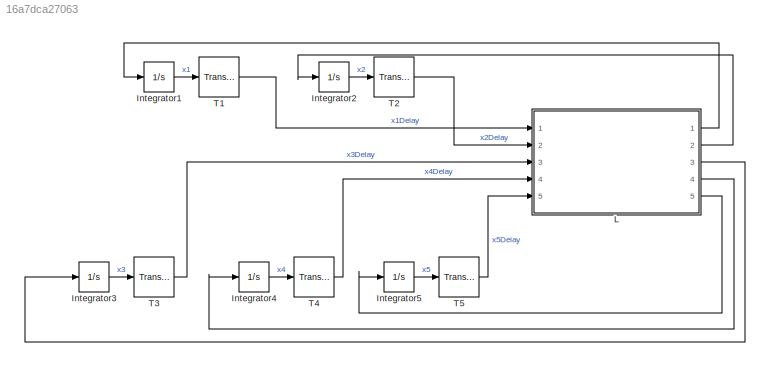
MODEL slx_16a7dca27063
KIND model
CONFIG AbsTol = auto
CONFIG EnableMultiTasking = off
CONFIG FixedStep = 0.1
CONFIG MaxStep = auto
CONFIG MinStep = auto
CONFIG RelTol = 1e-3
CONFIG SampleTimeConstraint = Unconstrained
CONFIG Solver = FixedStepAuto
CONFIG SolverName = FixedStepAuto
CONFIG StartTime = 0.0
CONFIG StopTime = 200
BLOCK [Integrator] Integrator1
  InitialCondition = 8.9
  Ports = [1, 1]
BLOCK [Integrator] Integrator2
  InitialCondition = 3.5
  Ports = [1, 1]
BLOCK [Integrator] Integrator3
  InitialCondition = 5.5
  Ports = [1, 1]
BLOCK [Integrator] Integrator4
  InitialCondition = 4.5
  Ports = [1, 1]
BLOCK [Integrator] Integrator5
  InitialCondition = 2.7
  Ports = [1, 1]
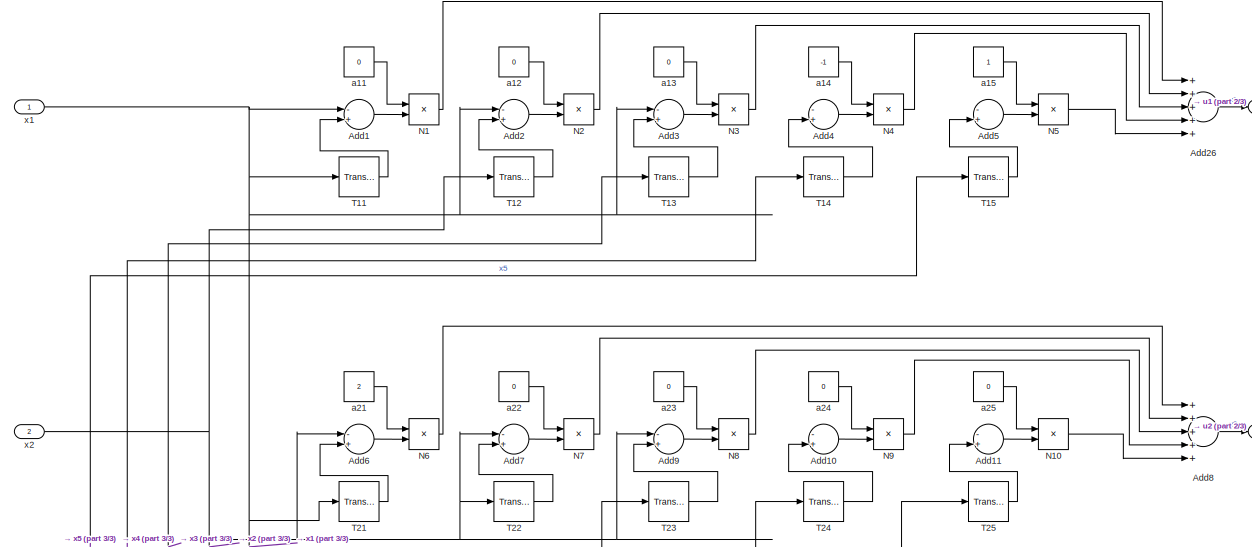
[diagram: L - part 1/3, full width, top band]
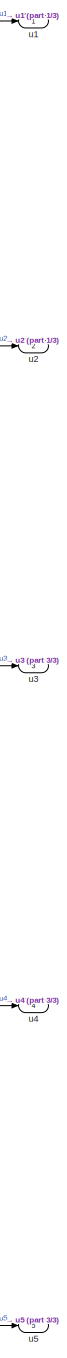
[diagram: L - part 2/3, right side, full height]
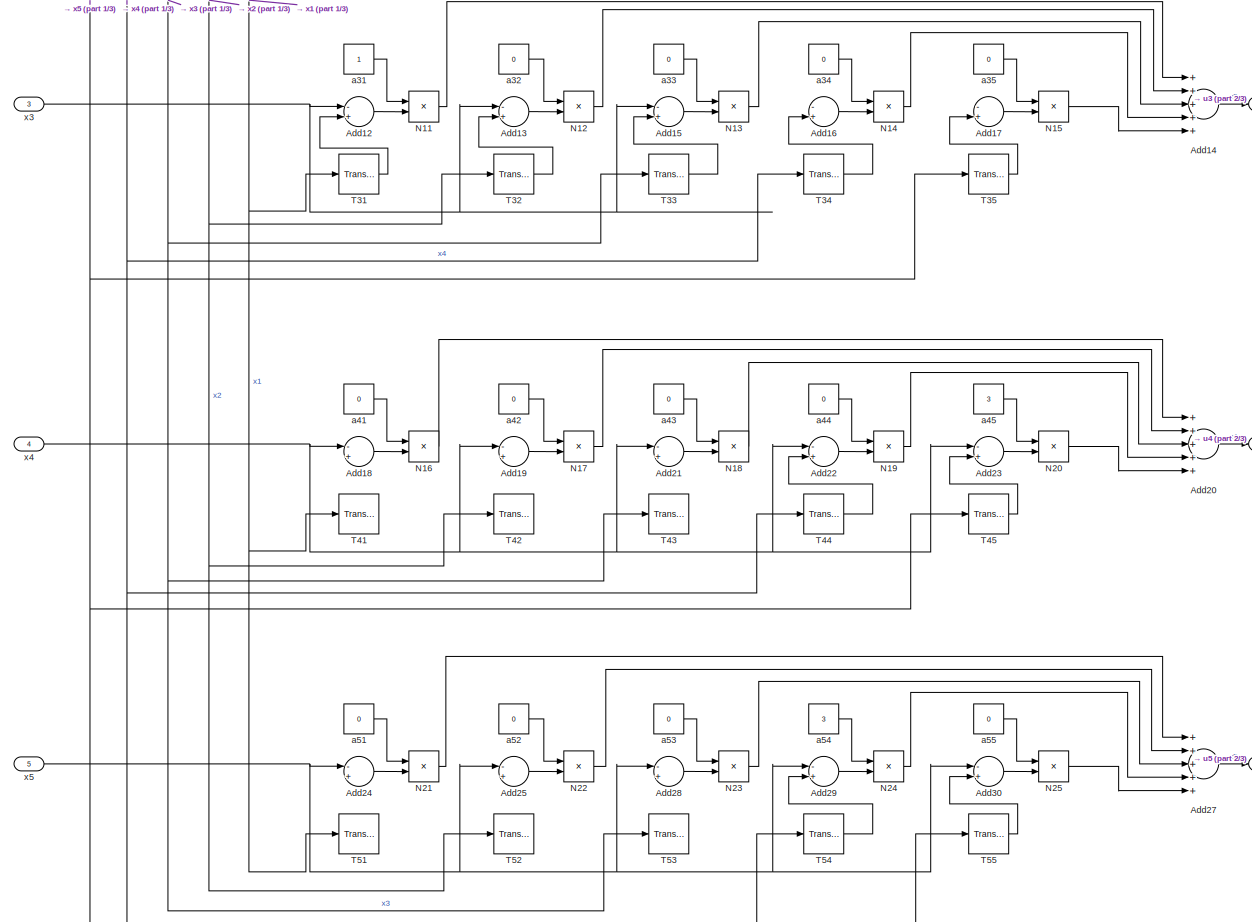
[diagram: L - part 3/3, full width, bottom band]
BLOCK [SubSystem] L
  Ports = [5, 5]
  RequestExecContextInheritance = off
BLOCK [Sum] L/Add1
  InputSameDT = off
  Inputs = -+
  OutDataTypeStr = Inherit: Inherit via internal rule
  Ports = [2, 1]
  SaturateOnIntegerOverflow = off
BLOCK [Sum] L/Add10
  InputSameDT = off
  Inputs = -+
  OutDataTypeStr = Inherit: Inherit via internal rule
  Ports = [2, 1]
  SaturateOnIntegerOverflow = off
BLOCK [Sum] L/Add11
  InputSameDT = off
  Inputs = -+
  OutDataTypeStr = Inherit: Inherit via internal rule
  Ports = [2, 1]
  SaturateOnIntegerOverflow = off
BLOCK [Sum] L/Add12
  InputSameDT = off
  Inputs = -+
  OutDataTypeStr = Inherit: Inherit via internal rule
  Ports = [2, 1]
  SaturateOnIntegerOverflow = off
BLOCK [Sum] L/Add13
  InputSameDT = off
  Inputs = -+
  OutDataTypeStr = Inherit: Inherit via internal rule
  Ports = [2, 1]
  SaturateOnIntegerOverflow = off
BLOCK [Sum] L/Add14
  InputSameDT = off
  Inputs = +++++
  OutDataTypeStr = Inherit: Inherit via internal rule
  Ports = [5, 1]
  SaturateOnIntegerOverflow = off
BLOCK [Sum] L/Add15
  InputSameDT = off
  Inputs = -+
  OutDataTypeStr = Inherit: Inherit via internal rule
  Ports = [2, 1]
  SaturateOnIntegerOverflow = off
BLOCK [Sum] L/Add16
  InputSameDT = off
  Inputs = -+
  OutDataTypeStr = Inherit: Inherit via internal rule
  Ports = [2, 1]
  SaturateOnIntegerOverflow = off
BLOCK [Sum] L/Add17
  InputSameDT = off
  Inputs = -+
  OutDataTypeStr = Inherit: Inherit via internal rule
  Ports = [2, 1]
  SaturateOnIntegerOverflow = off
BLOCK [Sum] L/Add18
  InputSameDT = off
  Inputs = -+
  OutDataTypeStr = Inherit: Inherit via internal rule
  Ports = [2, 1]
  SaturateOnIntegerOverflow = off
BLOCK [Sum] L/Add19
  InputSameDT = off
  Inputs = -+
  OutDataTypeStr = Inherit: Inherit via internal rule
  Ports = [2, 1]
  SaturateOnIntegerOverflow = off
BLOCK [Sum] L/Add2
  InputSameDT = off
  Inputs = -+
  OutDataTypeStr = Inherit: Inherit via internal rule
  Ports = [2, 1]
  SaturateOnIntegerOverflow = off
BLOCK [Sum] L/Add20
  InputSameDT = off
  Inputs = +++++
  OutDataTypeStr = Inherit: Inherit via internal rule
  Ports = [5, 1]
  SaturateOnIntegerOverflow = off
BLOCK [Sum] L/Add21
  InputSameDT = off
  Inputs = -+
  OutDataTypeStr = Inherit: Inherit via internal rule
  Ports = [2, 1]
  SaturateOnIntegerOverflow = off
BLOCK [Sum] L/Add22
  InputSameDT = off
  Inputs = -+
  OutDataTypeStr = Inherit: Inherit via internal rule
  Ports = [2, 1]
  SaturateOnIntegerOverflow = off
BLOCK [Sum] L/Add23
  InputSameDT = off
  Inputs = -+
  OutDataTypeStr = Inherit: Inherit via internal rule
  Ports = [2, 1]
  SaturateOnIntegerOverflow = off
BLOCK [Sum] L/Add24
  InputSameDT = off
  Inputs = -+
  OutDataTypeStr = Inherit: Inherit via internal rule
  Ports = [2, 1]
  SaturateOnIntegerOverflow = off
BLOCK [Sum] L/Add25
  InputSameDT = off
  Inputs = -+
  OutDataTypeStr = Inherit: Inherit via internal rule
  Ports = [2, 1]
  SaturateOnIntegerOverflow = off
BLOCK [Sum] L/Add26
  InputSameDT = off
  Inputs = +++++
  OutDataTypeStr = Inherit: Inherit via internal rule
  Ports = [5, 1]
  SaturateOnIntegerOverflow = off
BLOCK [Sum] L/Add27
  InputSameDT = off
  Inputs = +++++
  OutDataTypeStr = Inherit: Inherit via internal rule
  Ports = [5, 1]
  SaturateOnIntegerOverflow = off
BLOCK [Sum] L/Add28
  InputSameDT = off
  Inputs = -+
  OutDataTypeStr = Inherit: Inherit via internal rule
  Ports = [2, 1]
  SaturateOnIntegerOverflow = off
BLOCK [Sum] L/Add29
  InputSameDT = off
  Inputs = -+
  OutDataTypeStr = Inherit: Inherit via internal rule
  Ports = [2, 1]
  SaturateOnIntegerOverflow = off
BLOCK [Sum] L/Add3
  InputSameDT = off
  Inputs = -+
  OutDataTypeStr = Inherit: Inherit via internal rule
  Ports = [2, 1]
  SaturateOnIntegerOverflow = off
BLOCK [Sum] L/Add30
  InputSameDT = off
  Inputs = -+
  OutDataTypeStr = Inherit: Inherit via internal rule
  Ports = [2, 1]
  SaturateOnIntegerOverflow = off
BLOCK [Sum] L/Add4
  InputSameDT = off
  Inputs = -+
  OutDataTypeStr = Inherit: Inherit via internal rule
  Ports = [2, 1]
  SaturateOnIntegerOverflow = off
BLOCK [Sum] L/Add5
  InputSameDT = off
  Inputs = -+
  OutDataTypeStr = Inherit: Inherit via internal rule
  Ports = [2, 1]
  SaturateOnIntegerOverflow = off
BLOCK [Sum] L/Add6
  InputSameDT = off
  Inputs = -+
  OutDataTypeStr = Inherit: Inherit via internal rule
  Ports = [2, 1]
  SaturateOnIntegerOverflow = off
BLOCK [Sum] L/Add7
  InputSameDT = off
  Inputs = -+
  OutDataTypeStr = Inherit: Inherit via internal rule
  Ports = [2, 1]
  SaturateOnIntegerOverflow = off
BLOCK [Sum] L/Add8
  InputSameDT = off
  Inputs = +++++
  OutDataTypeStr = Inherit: Inherit via internal rule
  Ports = [5, 1]
  SaturateOnIntegerOverflow = off
BLOCK [Sum] L/Add9
  InputSameDT = off
  Inputs = -+
  OutDataTypeStr = Inherit: Inherit via internal rule
  Ports = [2, 1]
  SaturateOnIntegerOverflow = off
BLOCK [Product] L/N1
  InputSameDT = off
  OutDataTypeStr = Inherit: Inherit via internal rule
  Ports = [2, 1]
  RndMeth = Floor
  SaturateOnIntegerOverflow = off
BLOCK [Product] L/N10
  InputSameDT = off
  OutDataTypeStr = Inherit: Inherit via internal rule
  Ports = [2, 1]
  RndMeth = Floor
  SaturateOnIntegerOverflow = off
BLOCK [Product] L/N11
  InputSameDT = off
  OutDataTypeStr = Inherit: Inherit via internal rule
  Ports = [2, 1]
  RndMeth = Floor
  SaturateOnIntegerOverflow = off
BLOCK [Product] L/N12
  InputSameDT = off
  OutDataTypeStr = Inherit: Inherit via internal rule
  Ports = [2, 1]
  RndMeth = Floor
  SaturateOnIntegerOverflow = off
BLOCK [Product] L/N13
  InputSameDT = off
  OutDataTypeStr = Inherit: Inherit via internal rule
  Ports = [2, 1]
  RndMeth = Floor
  SaturateOnIntegerOverflow = off
BLOCK [Product] L/N14
  InputSameDT = off
  OutDataTypeStr = Inherit: Inherit via internal rule
  Ports = [2, 1]
  RndMeth = Floor
  SaturateOnIntegerOverflow = off
BLOCK [Product] L/N15
  InputSameDT = off
  OutDataTypeStr = Inherit: Inherit via internal rule
  Ports = [2, 1]
  RndMeth = Floor
  SaturateOnIntegerOverflow = off
BLOCK [Product] L/N16
  InputSameDT = off
  OutDataTypeStr = Inherit: Inherit via internal rule
  Ports = [2, 1]
  RndMeth = Floor
  SaturateOnIntegerOverflow = off
BLOCK [Product] L/N17
  InputSameDT = off
  OutDataTypeStr = Inherit: Inherit via internal rule
  Ports = [2, 1]
  RndMeth = Floor
  SaturateOnIntegerOverflow = off
BLOCK [Product] L/N18
  InputSameDT = off
  OutDataTypeStr = Inherit: Inherit via internal rule
  Ports = [2, 1]
  RndMeth = Floor
  SaturateOnIntegerOverflow = off
BLOCK [Product] L/N19
  InputSameDT = off
  OutDataTypeStr = Inherit: Inherit via internal rule
  Ports = [2, 1]
  RndMeth = Floor
  SaturateOnIntegerOverflow = off
BLOCK [Product] L/N2
  InputSameDT = off
  OutDataTypeStr = Inherit: Inherit via internal rule
  Ports = [2, 1]
  RndMeth = Floor
  SaturateOnIntegerOverflow = off
BLOCK [Product] L/N20
  InputSameDT = off
  OutDataTypeStr = Inherit: Inherit via internal rule
  Ports = [2, 1]
  RndMeth = Floor
  SaturateOnIntegerOverflow = off
BLOCK [Product] L/N21
  InputSameDT = off
  OutDataTypeStr = Inherit: Inherit via internal rule
  Ports = [2, 1]
  RndMeth = Floor
  SaturateOnIntegerOverflow = off
BLOCK [Product] L/N22
  InputSameDT = off
  OutDataTypeStr = Inherit: Inherit via internal rule
  Ports = [2, 1]
  RndMeth = Floor
  SaturateOnIntegerOverflow = off
BLOCK [Product] L/N23
  InputSameDT = off
  OutDataTypeStr = Inherit: Inherit via internal rule
  Ports = [2, 1]
  RndMeth = Floor
  SaturateOnIntegerOverflow = off
BLOCK [Product] L/N24
  InputSameDT = off
  OutDataTypeStr = Inherit: Inherit via internal rule
  Ports = [2, 1]
  RndMeth = Floor
  SaturateOnIntegerOverflow = off
BLOCK [Product] L/N25
  InputSameDT = off
  OutDataTypeStr = Inherit: Inherit via internal rule
  Ports = [2, 1]
  RndMeth = Floor
  SaturateOnIntegerOverflow = off
BLOCK [Product] L/N3
  InputSameDT = off
  OutDataTypeStr = Inherit: Inherit via internal rule
  Ports = [2, 1]
  RndMeth = Floor
  SaturateOnIntegerOverflow = off
BLOCK [Product] L/N4
  InputSameDT = off
  OutDataTypeStr = Inherit: Inherit via internal rule
  Ports = [2, 1]
  RndMeth = Floor
  SaturateOnIntegerOverflow = off
BLOCK [Product] L/N5
  InputSameDT = off
  OutDataTypeStr = Inherit: Inherit via internal rule
  Ports = [2, 1]
  RndMeth = Floor
  SaturateOnIntegerOverflow = off
BLOCK [Product] L/N6
  InputSameDT = off
  OutDataTypeStr = Inherit: Inherit via internal rule
  Ports = [2, 1]
  RndMeth = Floor
  SaturateOnIntegerOverflow = off
BLOCK [Product] L/N7
  InputSameDT = off
  OutDataTypeStr = Inherit: Inherit via internal rule
  Ports = [2, 1]
  RndMeth = Floor
  SaturateOnIntegerOverflow = off
BLOCK [Product] L/N8
  InputSameDT = off
  OutDataTypeStr = Inherit: Inherit via internal rule
  Ports = [2, 1]
  RndMeth = Floor
  SaturateOnIntegerOverflow = off
BLOCK [Product] L/N9
  InputSameDT = off
  OutDataTypeStr = Inherit: Inherit via internal rule
  Ports = [2, 1]
  RndMeth = Floor
  SaturateOnIntegerOverflow = off
BLOCK [TransportDelay] L/T11
  DelayTime = 0.3
  Ports = [1, 1]
BLOCK [TransportDelay] L/T12
  DelayTime = 0.3
  Ports = [1, 1]
BLOCK [TransportDelay] L/T13
  DelayTime = 0.3
  Ports = [1, 1]
BLOCK [TransportDelay] L/T14
  DelayTime = 0.3
  Ports = [1, 1]
BLOCK [TransportDelay] L/T15
  DelayTime = 0.3
  Ports = [1, 1]
BLOCK [TransportDelay] L/T21
  DelayTime = 0.3
  Ports = [1, 1]
BLOCK [TransportDelay] L/T22
  DelayTime = 0.3
  Ports = [1, 1]
BLOCK [TransportDelay] L/T23
  DelayTime = 0.3
  Ports = [1, 1]
BLOCK [TransportDelay] L/T24
  DelayTime = 0.3
  Ports = [1, 1]
BLOCK [TransportDelay] L/T25
  DelayTime = 0.3
  Ports = [1, 1]
BLOCK [TransportDelay] L/T31
  DelayTime = 0.3
  Ports = [1, 1]
BLOCK [TransportDelay] L/T32
  DelayTime = 0.3
  Ports = [1, 1]
BLOCK [TransportDelay] L/T33
  DelayTime = 0.3
  Ports = [1, 1]
BLOCK [TransportDelay] L/T34
  DelayTime = 0.3
  Ports = [1, 1]
BLOCK [TransportDelay] L/T35
  DelayTime = 0.3
  Ports = [1, 1]
BLOCK [TransportDelay] L/T41
  DelayTime = 0.3
  Ports = [1, 1]
BLOCK [TransportDelay] L/T42
  DelayTime = 0.3
  Ports = [1, 1]
BLOCK [TransportDelay] L/T43
  DelayTime = 0.3
  Ports = [1, 1]
BLOCK [TransportDelay] L/T44
  DelayTime = 0.3
  Ports = [1, 1]
BLOCK [TransportDelay] L/T45
  DelayTime = 0.3
  Ports = [1, 1]
BLOCK [TransportDelay] L/T51
  DelayTime = 0.3
  Ports = [1, 1]
BLOCK [TransportDelay] L/T52
  DelayTime = 0.3
  Ports = [1, 1]
BLOCK [TransportDelay] L/T53
  DelayTime = 0.3
  Ports = [1, 1]
BLOCK [TransportDelay] L/T54
  DelayTime = 0.3
  Ports = [1, 1]
BLOCK [TransportDelay] L/T55
  DelayTime = 0.3
  Ports = [1, 1]
BLOCK [Constant] L/a11
  Value = 0
BLOCK [Constant] L/a12
  Value = 0
BLOCK [Constant] L/a13
  Value = 0
BLOCK [Constant] L/a14
  Value = -1
BLOCK [Constant] L/a15
BLOCK [Constant] L/a21
  Value = 2
BLOCK [Constant] L/a22
  Value = 0
BLOCK [Constant] L/a23
  Value = 0
BLOCK [Constant] L/a24
  Value = 0
BLOCK [Constant] L/a25
  Value = 0
BLOCK [Constant] L/a31
BLOCK [Constant] L/a32
  Value = 0
BLOCK [Constant] L/a33
  Value = 0
BLOCK [Constant] L/a34
  Value = 0
BLOCK [Constant] L/a35
  Value = 0
BLOCK [Constant] L/a41
  Value = 0
BLOCK [Constant] L/a42
  Value = 0
BLOCK [Constant] L/a43
  Value = 0
BLOCK [Constant] L/a44
  Value = 0
BLOCK [Constant] L/a45
  Value = 3
BLOCK [Constant] L/a51
  Value = 0
BLOCK [Constant] L/a52
  Value = 0
BLOCK [Constant] L/a53
  Value = 0
BLOCK [Constant] L/a54
  Value = 3
BLOCK [Constant] L/a55
  Value = 0
BLOCK [Outport] L/u1
  IconDisplay = Port number
BLOCK [Outport] L/u2
  IconDisplay = Port number
  Port = 2
BLOCK [Outport] L/u3
  IconDisplay = Port number
  Port = 3
BLOCK [Outport] L/u4
  IconDisplay = Port number
  Port = 4
BLOCK [Outport] L/u5
  IconDisplay = Port number
  Port = 5
BLOCK [Inport] L/x1
  IconDisplay = Port number
BLOCK [Inport] L/x2
  IconDisplay = Port number
  Port = 2
BLOCK [Inport] L/x3
  IconDisplay = Port number
  Port = 3
BLOCK [Inport] L/x4
  IconDisplay = Port number
  Port = 4
BLOCK [Inport] L/x5
  IconDisplay = Port number
  Port = 5
BLOCK [TransportDelay] T1
  DelayTime = 0.2
  Ports = [1, 1]
BLOCK [TransportDelay] T2
  DelayTime = 0.1
  Ports = [1, 1]
BLOCK [TransportDelay] T3
  DelayTime = 0.05
  Ports = [1, 1]
BLOCK [TransportDelay] T4
  DelayTime = 0.06
  Ports = [1, 1]
BLOCK [TransportDelay] T5
  DelayTime = 0.2
  Ports = [1, 1]
LINE Integrator1:1 -> T1:1
LINE Integrator2:1 -> T2:1
LINE Integrator3:1 -> T3:1
LINE Integrator4:1 -> T4:1
LINE Integrator5:1 -> T5:1
LINE L/Add10:1 -> L/N9:2
LINE L/Add11:1 -> L/N10:2
LINE L/Add12:1 -> L/N11:2
LINE L/Add13:1 -> L/N12:2
LINE L/Add14:1 -> L/u3:1
LINE L/Add15:1 -> L/N13:2
LINE L/Add16:1 -> L/N14:2
LINE L/Add17:1 -> L/N15:2
LINE L/Add18:1 -> L/N16:2
LINE L/Add19:1 -> L/N17:2
LINE L/Add1:1 -> L/N1:2
LINE L/Add20:1 -> L/u4:1
LINE L/Add21:1 -> L/N18:2
LINE L/Add22:1 -> L/N19:2
LINE L/Add23:1 -> L/N20:2
LINE L/Add24:1 -> L/N21:2
LINE L/Add25:1 -> L/N22:2
LINE L/Add26:1 -> L/u1:1
LINE L/Add27:1 -> L/u5:1
LINE L/Add28:1 -> L/N23:2
LINE L/Add29:1 -> L/N24:2
LINE L/Add2:1 -> L/N2:2
LINE L/Add30:1 -> L/N25:2
LINE L/Add3:1 -> L/N3:2
LINE L/Add4:1 -> L/N4:2
LINE L/Add5:1 -> L/N5:2
LINE L/Add6:1 -> L/N6:2
LINE L/Add7:1 -> L/N7:2
LINE L/Add8:1 -> L/u2:1
LINE L/Add9:1 -> L/N8:2
LINE L/N10:1 -> L/Add8:5
LINE L/N11:1 -> L/Add14:1
LINE L/N12:1 -> L/Add14:2
LINE L/N13:1 -> L/Add14:3
LINE L/N14:1 -> L/Add14:4
LINE L/N15:1 -> L/Add14:5
LINE L/N16:1 -> L/Add20:1
LINE L/N17:1 -> L/Add20:2
LINE L/N18:1 -> L/Add20:3
LINE L/N19:1 -> L/Add20:4
LINE L/N1:1 -> L/Add26:1
LINE L/N20:1 -> L/Add20:5
LINE L/N21:1 -> L/Add27:1
LINE L/N22:1 -> L/Add27:2
LINE L/N23:1 -> L/Add27:3
LINE L/N24:1 -> L/Add27:4
LINE L/N25:1 -> L/Add27:5
LINE L/N2:1 -> L/Add26:2
LINE L/N3:1 -> L/Add26:3
LINE L/N4:1 -> L/Add26:4
LINE L/N5:1 -> L/Add26:5
LINE L/N6:1 -> L/Add8:1
LINE L/N7:1 -> L/Add8:2
LINE L/N8:1 -> L/Add8:3
LINE L/N9:1 -> L/Add8:4
LINE L/T11:1 -> L/Add1:2
LINE L/T12:1 -> L/Add2:2
LINE L/T13:1 -> L/Add3:2
LINE L/T14:1 -> L/Add4:2
LINE L/T15:1 -> L/Add5:2
LINE L/T21:1 -> L/Add6:2
LINE L/T22:1 -> L/Add7:2
LINE L/T23:1 -> L/Add9:2
LINE L/T24:1 -> L/Add10:2
LINE L/T25:1 -> L/Add11:2
LINE L/T31:1 -> L/Add12:2
LINE L/T32:1 -> L/Add13:2
LINE L/T33:1 -> L/Add15:2
LINE L/T34:1 -> L/Add16:2
LINE L/T35:1 -> L/Add17:2
LINE L/T44:1 -> L/Add22:2
LINE L/T45:1 -> L/Add23:2
LINE L/T54:1 -> L/Add29:2
LINE L/T55:1 -> L/Add30:2
LINE L/a11:1 -> L/N1:1
LINE L/a12:1 -> L/N2:1
LINE L/a13:1 -> L/N3:1
LINE L/a14:1 -> L/N4:1
LINE L/a15:1 -> L/N5:1
LINE L/a21:1 -> L/N6:1
LINE L/a22:1 -> L/N7:1
LINE L/a23:1 -> L/N8:1
LINE L/a24:1 -> L/N9:1
LINE L/a25:1 -> L/N10:1
LINE L/a31:1 -> L/N11:1
LINE L/a32:1 -> L/N12:1
LINE L/a33:1 -> L/N13:1
LINE L/a34:1 -> L/N14:1
LINE L/a35:1 -> L/N15:1
LINE L/a41:1 -> L/N16:1
LINE L/a42:1 -> L/N17:1
LINE L/a43:1 -> L/N18:1
LINE L/a44:1 -> L/N19:1
LINE L/a45:1 -> L/N20:1
LINE L/a51:1 -> L/N21:1
LINE L/a52:1 -> L/N22:1
LINE L/a53:1 -> L/N23:1
LINE L/a54:1 -> L/N24:1
LINE L/a55:1 -> L/N25:1
NET L/x1:1 -> L/Add1:1, L/Add2:1, L/Add3:1, L/T11:1, L/T21:1, L/T31:1, L/T41:1, L/T51:1
NET L/x2:1 -> L/Add6:1, L/Add7:1, L/Add9:1, L/T12:1, L/T22:1, L/T32:1, L/T42:1, L/T52:1
NET L/x3:1 -> L/Add12:1, L/Add13:1, L/Add15:1, L/T13:1, L/T23:1, L/T33:1, L/T43:1, L/T53:1
NET L/x4:1 -> L/Add18:1, L/Add19:1, L/Add21:1, L/Add22:1, L/Add23:1, L/T14:1, L/T24:1, L/T34:1, L/T44:1, L/T54:1
NET L/x5:1 -> L/Add24:1, L/Add25:1, L/Add28:1, L/Add29:1, L/Add30:1, L/T15:1, L/T25:1, L/T35:1, L/T45:1, L/T55:1
LINE L:1 -> Integrator1:1
LINE L:2 -> Integrator2:1
LINE L:3 -> Integrator3:1
LINE L:4 -> Integrator4:1
LINE L:5 -> Integrator5:1
LINE T1:1 -> L:1
LINE T2:1 -> L:2
LINE T3:1 -> L:3
LINE T4:1 -> L:4
LINE T5:1 -> L:5
note: NET lines group one-source signal fan-out (src -> all destinations, sorted); 1:1 wires keep LINE
